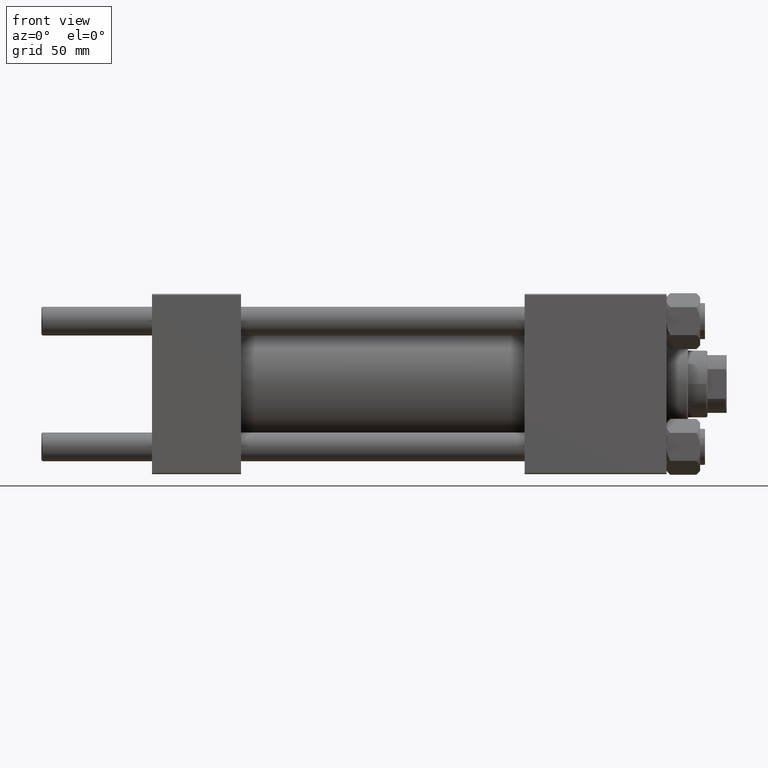
[diagram: clean part render]
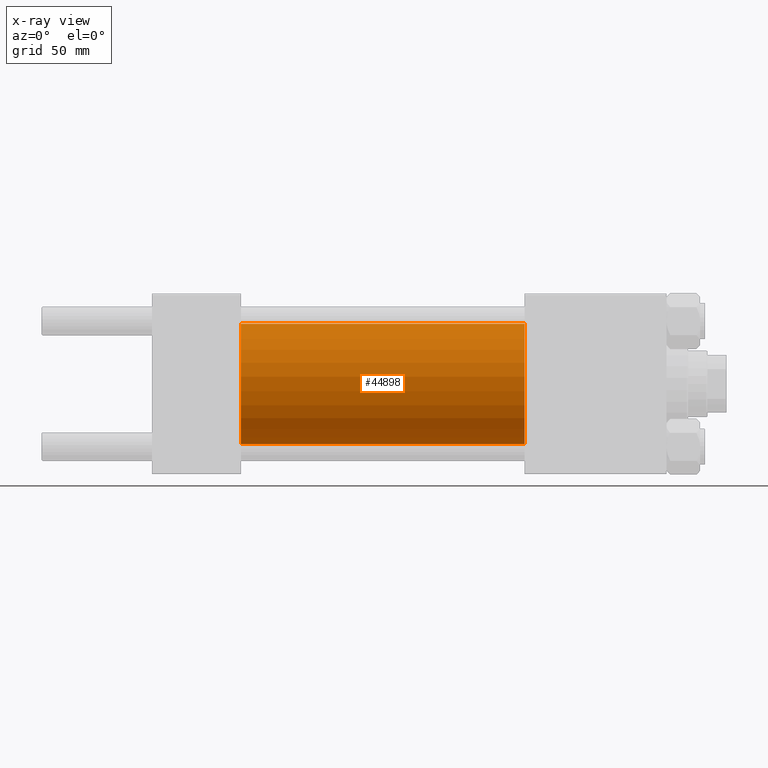
[diagram: x-ray — body ghosted, one internal face saturated and labeled with its STEP entity id]
A machine part, front view, then the same camera in x-ray: the body is ghosted and one INTERNAL B-rep face — a face not visible from any outside direction — is saturated and labeled: STEP entity #44898.
In plain terms, the highlighted cylindrical surface (partial cylindrical patch) has radius 25 mm, axis along (-1, -0, -0).
Its self-contained STEP definition (entity closure, byte-faithful):
#100 = EDGE_CURVE ( 'NONE', #40316, #33799, #46903, .T. ) ;
#2616 = CARTESIAN_POINT ( 'NONE',  ( 155.0000000000000000, 0.000000000000000000, 25.00000000000000000 ) ) ;
#4060 = VECTOR ( 'NONE', #13188, 1000.000000000000000 ) ;
#5051 = CARTESIAN_POINT ( 'NONE',  ( 37.00000000000000000, 0.000000000000000000, 0.000000000000000000 ) ) ;
#5091 = CIRCLE ( 'NONE', #33207, 25.00000000000000000 ) ;
#5545 = DIRECTION ( 'NONE',  ( 1.000000000000000000, 0.000000000000000000, 0.000000000000000000 ) ) ;
#8023 = AXIS2_PLACEMENT_3D ( 'NONE', #48347, #41311, #13901 ) ;
#9295 = DIRECTION ( 'NONE',  ( 0.000000000000000000, 0.000000000000000000, -1.000000000000000000 ) ) ;
#9872 = CYLINDRICAL_SURFACE ( 'NONE', #8023, 25.00000000000000000 ) ;
#12141 = EDGE_CURVE ( 'NONE', #40316, #18425, #5091, .T. ) ;
#13188 = DIRECTION ( 'NONE',  ( -1.000000000000000000, -0.000000000000000000, -0.000000000000000000 ) ) ;
#13901 = DIRECTION ( 'NONE',  ( 0.000000000000000000, 0.000000000000000000, 1.000000000000000000 ) ) ;
#18425 = VERTEX_POINT ( 'NONE', #44238 ) ;
#20773 = CARTESIAN_POINT ( 'NONE',  ( 155.0000000000000000, 0.000000000000000000, 25.00000000000000000 ) ) ;
#21926 = VERTEX_POINT ( 'NONE', #36090 ) ;
#22547 = AXIS2_PLACEMENT_3D ( 'NONE', #5051, #5545, #42785 ) ;
#23877 = ORIENTED_EDGE ( 'NONE', *, *, #100, .F. ) ;
#25686 = CARTESIAN_POINT ( 'NONE',  ( 155.0000000000000000, 0.000000000000000000, 0.000000000000000000 ) ) ;
#26201 = CARTESIAN_POINT ( 'NONE',  ( 155.0000000000000000, 3.061616997868383043E-15, -25.00000000000000000 ) ) ;
#29598 = EDGE_LOOP ( 'NONE', ( #45421, #36729, #41214, #23877 ) ) ;
#33207 = AXIS2_PLACEMENT_3D ( 'NONE', #25686, #40754, #9295 ) ;
#33481 = DIRECTION ( 'NONE',  ( -1.000000000000000000, -0.000000000000000000, -0.000000000000000000 ) ) ;
#33799 = VERTEX_POINT ( 'NONE', #34814 ) ;
#34814 = CARTESIAN_POINT ( 'NONE',  ( 37.00000000000000000, 0.000000000000000000, 25.00000000000000000 ) ) ;
#36090 = CARTESIAN_POINT ( 'NONE',  ( 37.00000000000000000, 3.061616997868383043E-15, -25.00000000000000000 ) ) ;
#36729 = ORIENTED_EDGE ( 'NONE', *, *, #48073, .T. ) ;
#38556 = CIRCLE ( 'NONE', #22547, 25.00000000000000000 ) ;
#40316 = VERTEX_POINT ( 'NONE', #2616 ) ;
#40754 = DIRECTION ( 'NONE',  ( 1.000000000000000000, 0.000000000000000000, 0.000000000000000000 ) ) ;
#41214 = ORIENTED_EDGE ( 'NONE', *, *, #45068, .F. ) ;
#41311 = DIRECTION ( 'NONE',  ( -1.000000000000000000, -0.000000000000000000, -0.000000000000000000 ) ) ;
#42785 = DIRECTION ( 'NONE',  ( 0.000000000000000000, 0.000000000000000000, -1.000000000000000000 ) ) ;
#44238 = CARTESIAN_POINT ( 'NONE',  ( 155.0000000000000000, 3.061616997868383043E-15, -25.00000000000000000 ) ) ;
#44322 = FACE_OUTER_BOUND ( 'NONE', #29598, .T. ) ;
#44898 = ADVANCED_FACE ( 'NONE', ( #44322 ), #9872, .F. ) ;
#45068 = EDGE_CURVE ( 'NONE', #33799, #21926, #38556, .T. ) ;
#45086 = VECTOR ( 'NONE', #33481, 1000.000000000000000 ) ;
#45421 = ORIENTED_EDGE ( 'NONE', *, *, #12141, .T. ) ;
#45776 = LINE ( 'NONE', #26201, #45086 ) ;
#46903 = LINE ( 'NONE', #20773, #4060 ) ;
#48073 = EDGE_CURVE ( 'NONE', #18425, #21926, #45776, .T. ) ;
#48347 = CARTESIAN_POINT ( 'NONE',  ( 155.0000000000000000, 0.000000000000000000, 0.000000000000000000 ) ) ;